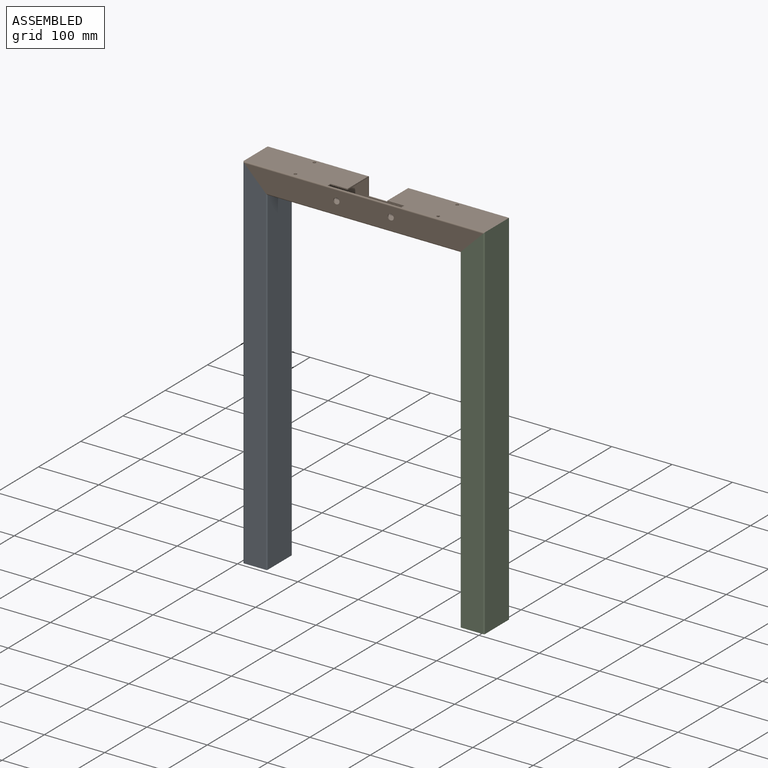
[diagram: assembled view]
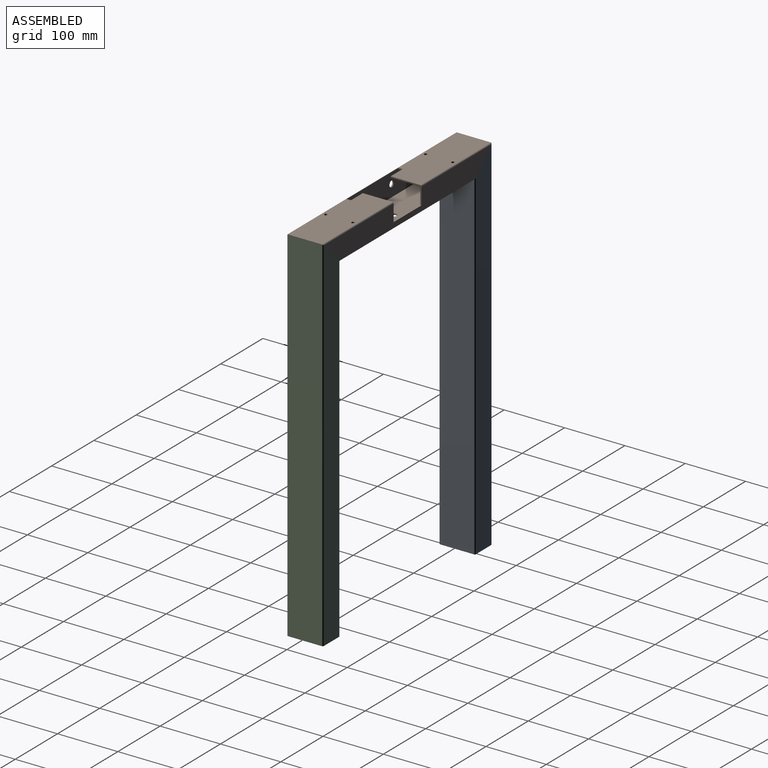
[diagram: assembled view, second angle]
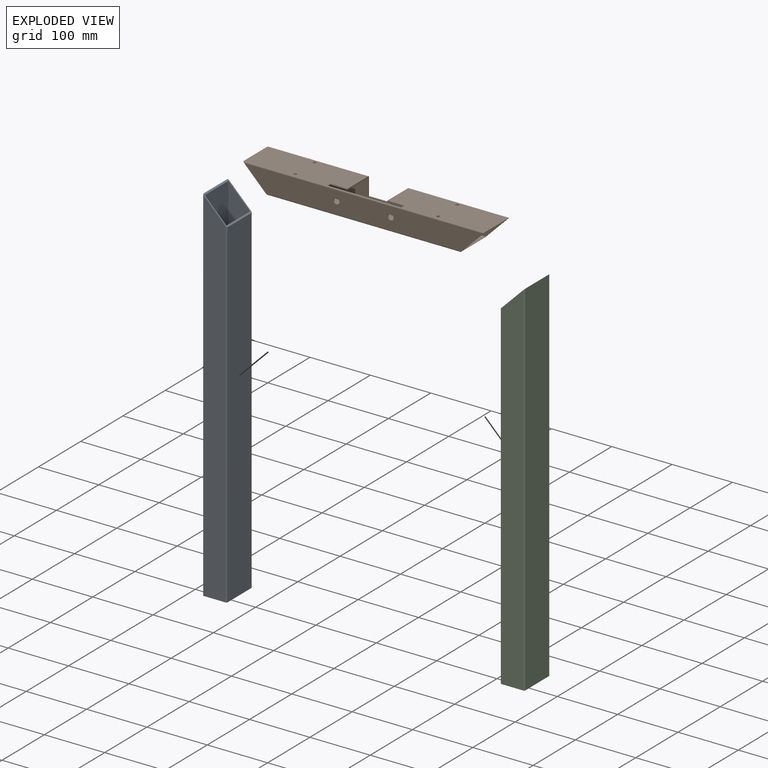
[diagram: exploded view]
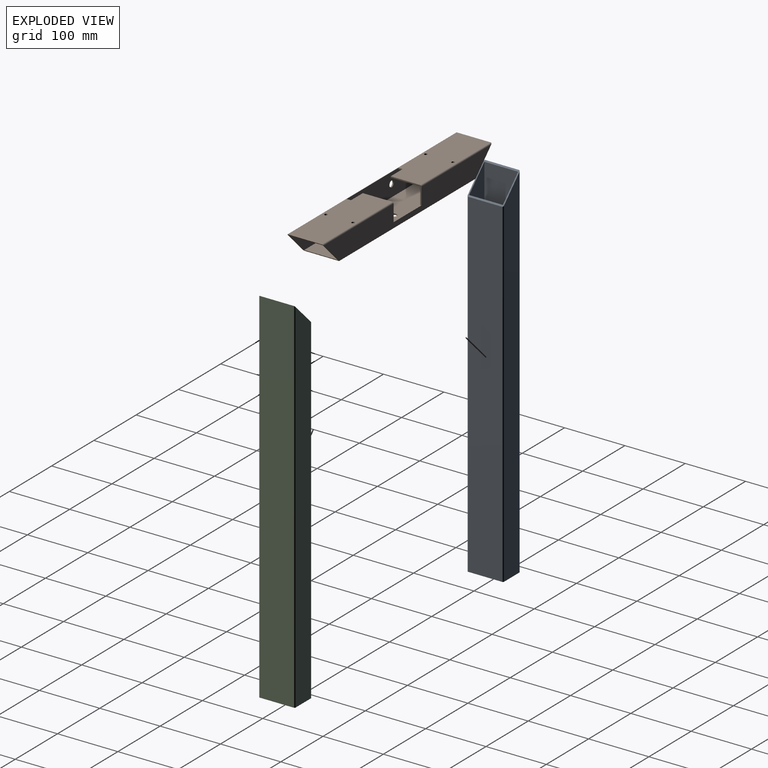
[diagram: exploded view, second angle]
ASSEMBLY  parts=3 mates=2
PART A: 14 faces, bbox 601.8x60x40 mm
  f0: plane 601.75x56mm, normal (0,0,1), area 33698mm2, adj f2,f9,f12,f13
  f1: plane 599.75x56mm, normal (0,0,-1), area 33586mm2, adj f6,f8,f12,f13
  f2: cylinder r=2mm len=601.75mm, axis (-1,0,0), area 1888.2mm2, adj f0,f11,f12,f13
  f3: plane 561.75x56mm, normal (0,0,-1), area 31458mm2, adj f4,f5,f12,f13
  f4: cylinder r=2mm len=563.75mm, axis (-1,0,0), area 1767.1mm2, adj f3,f10,f12,f13
  f5: cylinder r=2mm len=563.75mm, axis (-1,0,0), area 1767.1mm2, adj f3,f11,f12,f13
  f6: plane 599.75x36mm, normal (0,-1,0), area 20943mm2, adj f1,f7,f12,f13
  f7: plane 563.75x56mm, normal (0,0,1), area 31570mm2, adj f6,f8,f12,f13
  f8: plane 599.75x36mm, normal (0,1,0), area 20943mm2, adj f1,f7,f12,f13
  f9: cylinder r=2mm len=601.75mm, axis (-1,0,0), area 1888.2mm2, adj f0,f10,f12,f13
  f10: plane 599.75x36mm, normal (0,-1,0), area 20943mm2, adj f4,f9,f12,f13
  f11: plane 599.75x36mm, normal (0,1,0), area 20943mm2, adj f2,f5,f12,f13
  f12: plane 60x40mm, normal (-1,0,0), area 380.6mm2, adj f0,f1,f2,f3,f4,f5,f6,f7
  f13: plane 60x40mm, normal (0.71,0,-0.71), area 538.2mm2, adj f0,f1,f2,f3,f4,f5,f6,f7
PART B: 35 faces, bbox 400x60x40 mm
  f0: plane 167x56mm, normal (0,0,1), area 9116.7mm2, adj f6,f14,f16,f17,f18,f22,f28,f30
  f1: plane 396x36mm, normal (0,-1,0), area 11112mm2, adj f3,f4,f12,f15,f16,f21,f22,f23
  f2: plane 167x56mm, normal (0,0,1), area 9116.7mm2, adj f5,f14,f15,f19,f20,f21,f32,f34
  f3: plane 165x56mm, normal (0,0,-1), area 9004.7mm2, adj f1,f13,f15,f19,f20,f21,f32,f34
  f4: plane 165x56mm, normal (0,0,-1), area 9004.7mm2, adj f1,f13,f16,f17,f18,f22,f28,f30
  f5: cylinder r=2mm len=167mm, axis (-1,0,0), area 522.4mm2, adj f2,f9,f15,f21
  f6: cylinder r=2mm len=167mm, axis (-1,0,0), area 522.4mm2, adj f0,f9,f16,f22
  f7: plane 396x36mm, normal (0,-1,0), area 12802.9mm2, adj f10,f14,f15,f16,f25,f26
  f8: plane 320x56mm, normal (0,0,-1), area 17762.9mm2, adj f10,f11,f15,f16,f24,f27,f29,f31
  f9: plane 396x36mm, normal (0,1,0), area 11112mm2, adj f5,f6,f11,f15,f16,f21,f22,f23
  f10: cylinder r=2mm len=324mm, axis (-1,0,0), area 1009.9mm2, adj f7,f8,f15,f16
  f11: cylinder r=2mm len=324mm, axis (-1,0,0), area 1009.9mm2, adj f8,f9,f15,f16
  f12: plane 324x56mm, normal (0,0,1), area 17986.9mm2, adj f1,f13,f15,f16,f24,f27,f29,f31
  f13: plane 396x38mm, normal (0,1,0), area 13046.9mm2, adj f3,f4,f12,f14,f15,f16,f18,f19
  f14: cylinder r=2mm len=400mm, axis (-1,0,0), area 1252.1mm2, adj f0,f2,f7,f13,f15,f16
  f15: plane 60x40mm, normal (0.71,0,-0.71), area 538.2mm2, adj f1,f2,f3,f5,f7,f8,f9,f10
  f16: plane 60x40mm, normal (-0.71,0,-0.71), area 538.2mm2, adj f0,f1,f4,f6,f7,f8,f9,f10
  f17: plane 28x2mm, normal (0,-1,0), area 56mm2, adj f0,f4,f18,f22
  f18: plane 7x2mm, normal (1,0,0), area 14mm2, adj f0,f4,f13,f17
  f19: plane 7x2mm, normal (-1,0,0), area 14mm2, adj f2,f3,f13,f20
  f20: plane 28x2mm, normal (0,-1,0), area 56mm2, adj f2,f3,f19,f21
  f21: plane 51x30mm, normal (-1,0,0), area 157.1mm2, adj f1,f2,f3,f5,f9,f20,f23
  f22: plane 51x30mm, normal (1,0,0), area 157.1mm2, adj f0,f1,f4,f6,f9,f17,f23
  f23: plane 66x2mm, normal (0,0,1), area 132mm2, adj f1,f9,f21,f22
  f24: cylinder r=5mm len=10mm, axis (0,0,1), area 62.8mm2, adj f8,f12
  f25: cylinder r=5mm len=10mm, axis (0,1,0), area 62.8mm2, adj f7,f13
  f26: cylinder r=5mm len=10mm, axis (0,1,0), area 62.8mm2, adj f7,f13
  f27: cylinder r=2.5mm len=5mm, axis (0,0,-1), area 31.4mm2, adj f8,f12
  f28: cylinder r=2.5mm len=5mm, axis (0,0,-1), area 31.4mm2, adj f0,f4
  f29: cylinder r=2.5mm len=5mm, axis (0,0,-1), area 31.4mm2, adj f8,f12
  f30: cylinder r=2.5mm len=5mm, axis (0,0,-1), area 31.4mm2, adj f0,f4
  f31: cylinder r=2.5mm len=5mm, axis (0,0,-1), area 31.4mm2, adj f8,f12
  f32: cylinder r=2.5mm len=5mm, axis (0,0,-1), area 31.4mm2, adj f2,f3
  f33: cylinder r=2.5mm len=5mm, axis (0,0,-1), area 31.4mm2, adj f8,f12
  f34: cylinder r=2.5mm len=5mm, axis (0,0,-1), area 31.4mm2, adj f2,f3
PART C: 14 faces, bbox 601.8x60x40 mm
  f0: plane 601.75x56mm, normal (0,0,1), area 33698mm2, adj f2,f5,f12,f13
  f1: plane 599.75x56mm, normal (0,0,-1), area 33586mm2, adj f9,f11,f12,f13
  f2: cylinder r=2mm len=601.75mm, axis (-1,0,0), area 1888.2mm2, adj f0,f4,f12,f13
  f3: plane 599.75x36mm, normal (0,-1,0), area 20943mm2, adj f5,f6,f12,f13
  f4: plane 599.75x36mm, normal (0,1,0), area 20943mm2, adj f2,f8,f12,f13
  f5: cylinder r=2mm len=601.75mm, axis (-1,0,0), area 1888.2mm2, adj f0,f3,f12,f13
  f6: cylinder r=2mm len=563.75mm, axis (-1,0,0), area 1767.1mm2, adj f3,f7,f12,f13
  f7: plane 561.75x56mm, normal (0,0,-1), area 31458mm2, adj f6,f8,f12,f13
  f8: cylinder r=2mm len=563.75mm, axis (-1,0,0), area 1767.1mm2, adj f4,f7,f12,f13
  f9: plane 599.75x36mm, normal (0,-1,0), area 20943mm2, adj f1,f10,f12,f13
  f10: plane 563.75x56mm, normal (0,0,1), area 31570mm2, adj f9,f11,f12,f13
  f11: plane 599.75x36mm, normal (0,1,0), area 20943mm2, adj f1,f10,f12,f13
  f12: plane 60x40mm, normal (1,0,0), area 380.6mm2, adj f0,f1,f2,f3,f4,f5,f6,f7
  f13: plane 60x40mm, normal (-0.71,0,-0.71), area 538.2mm2, adj f0,f1,f2,f3,f4,f5,f6,f7
PLACE A rot(axis=(0,-1,0),90deg) t=(-160,0,236.5)mm
PLACE B at identity
PLACE C rot(axis=(0,1,0),90deg) t=(160,0,236.5)mm
MATE fastened C.f13 <-> B.f15  axis (-0.71,0,0.71) through (162,0,2)mm
MATE fastened A.f13 <-> B.f16  axis (0.71,0,0.71) through (-162,0,2)mm
